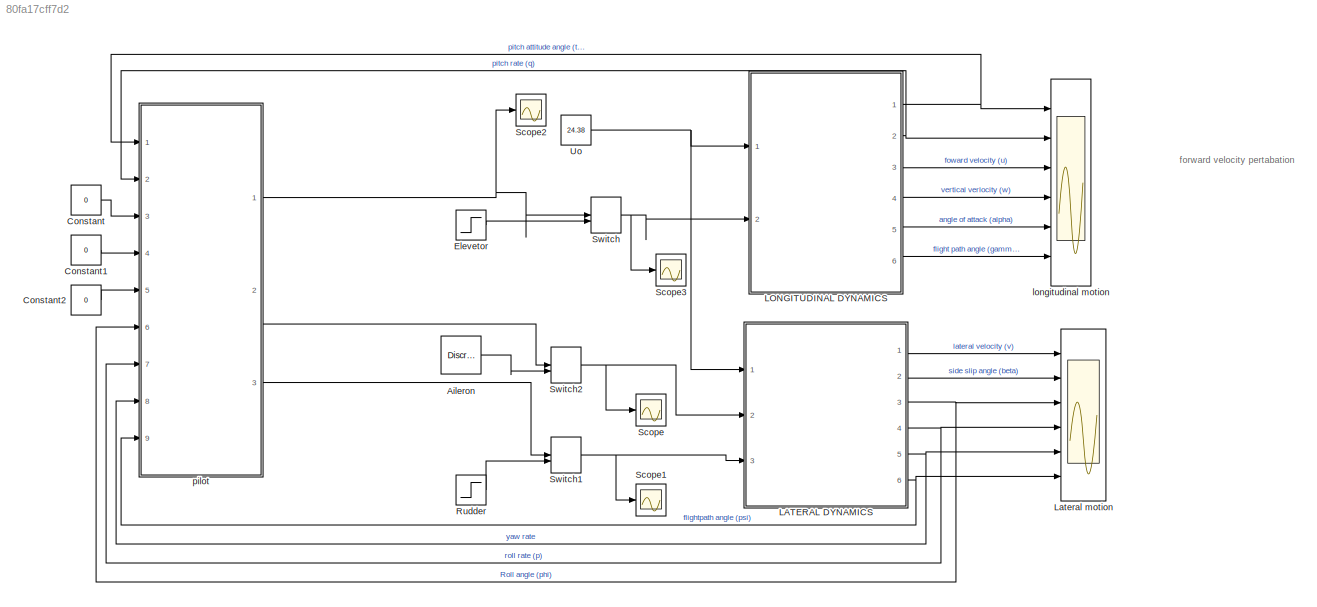
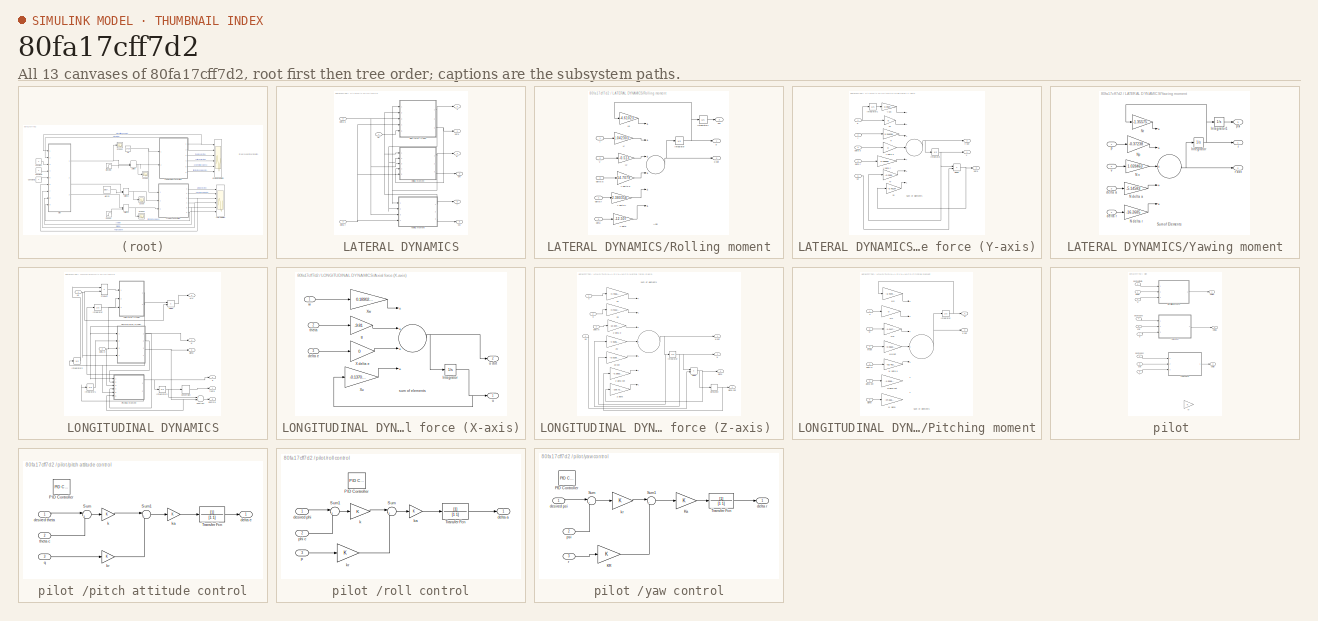
[diagram: thumbnail index - all 13 canvases of the model, root first then tree order]
MODEL slx_80fa17cff7d2
KIND model
CONFIG AbsTol = auto
CONFIG EnableMultiTasking = on
CONFIG FixedStep = auto
CONFIG MaxStep = auto
CONFIG MinStep = auto
CONFIG RelTol = 1e-3
CONFIG SampleTimeConstraint = Unconstrained
CONFIG Solver = ode45
CONFIG SolverName = ode45
CONFIG StartTime = 0.0
CONFIG StopTime = 400
BLOCK [ManualSwitch]  Switch
BLOCK [ManualSwitch]  Switch1
BLOCK [ManualSwitch]  Switch2
BLOCK [Reference] Aileron  REF=dspsrcs4/Discrete 
Impulse
  Ports = [0, 1]
  SourceBlock = dspsrcs4/Discrete \nImpulse
  SourceProductBaseCode = DS
  SourceProductName = DSP System Toolbox
  SourceType = Discrete Impulse
BLOCK [Constant] Constant
  SampleTime = 6
  Value = 0
BLOCK [Constant] Constant1
  Value = 0
BLOCK [Constant] Constant2
  Value = 0
BLOCK [Step] Elevetor
  After = -1
  SampleTime = 0
  Time = 0.5
BLOCK [SubSystem] LATERAL DYNAMICS
  Ports = [3, 6]
  RequestExecContextInheritance = off
BLOCK [SubSystem] LATERAL DYNAMICS/Rolling moment
  Ports = [5, 3]
  RequestExecContextInheritance = off
BLOCK [Sum] LATERAL DYNAMICS/Rolling moment/Add
  InputSameDT = off
  Inputs = ++++++
  OutDataTypeStr = Inherit: Inherit via internal rule
  Ports = [6, 1]
  SaturateOnIntegerOverflow = off
BLOCK [Integrator] LATERAL DYNAMICS/Rolling moment/Integrator
  Ports = [1, 1]
BLOCK [Integrator] LATERAL DYNAMICS/Rolling moment/Integrator1
  Ports = [1, 1]
BLOCK [Gain] LATERAL DYNAMICS/Rolling moment/L beta
  Gain = -12.507
  OutDataTypeStr = Inherit: Inherit via internal rule
  ParamDataTypeStr = Inherit: Inherit via internal rule
  SaturateOnIntegerOverflow = off
BLOCK [Gain] LATERAL DYNAMICS/Rolling moment/L delta a 
  Gain = 54.7079
  OutDataTypeStr = Inherit: Inherit via internal rule
  ParamDataTypeStr = Inherit: Inherit via internal rule
  SaturateOnIntegerOverflow = off
BLOCK [Gain] LATERAL DYNAMICS/Rolling moment/L delta r
  Gain = 2.380358
  OutDataTypeStr = Inherit: Inherit via internal rule
  ParamDataTypeStr = Inherit: Inherit via internal rule
  SaturateOnIntegerOverflow = off
BLOCK [Gain] LATERAL DYNAMICS/Rolling moment/Lp
  Gain = -4.61023
  OutDataTypeStr = Inherit: Inherit via internal rule
  ParamDataTypeStr = Inherit: Inherit via internal rule
  SaturateOnIntegerOverflow = off
BLOCK [Gain] LATERAL DYNAMICS/Rolling moment/Lr
  Gain = 1.042303
  OutDataTypeStr = Inherit: Inherit via internal rule
  ParamDataTypeStr = Inherit: Inherit via internal rule
  SaturateOnIntegerOverflow = off
BLOCK [Gain] LATERAL DYNAMICS/Rolling moment/Lv
  Gain = -0.513
  OutDataTypeStr = Inherit: Inherit via internal rule
  ParamDataTypeStr = Inherit: Inherit via internal rule
  SaturateOnIntegerOverflow = off
BLOCK [Inport] LATERAL DYNAMICS/Rolling moment/beta
  IconDisplay = Port number
  Port = 5
BLOCK [Inport] LATERAL DYNAMICS/Rolling moment/delta a
  IconDisplay = Port number
  Port = 3
BLOCK [Inport] LATERAL DYNAMICS/Rolling moment/delta r
  IconDisplay = Port number
  Port = 4
BLOCK [Outport] LATERAL DYNAMICS/Rolling moment/p
  IconDisplay = Port number
BLOCK [Outport] LATERAL DYNAMICS/Rolling moment/p dot
  IconDisplay = Port number
  Port = 2
BLOCK [Outport] LATERAL DYNAMICS/Rolling moment/phi
  IconDisplay = Port number
  Port = 3
BLOCK [Inport] LATERAL DYNAMICS/Rolling moment/r
  IconDisplay = Port number
BLOCK [Inport] LATERAL DYNAMICS/Rolling moment/v
  IconDisplay = Port number
  Port = 2
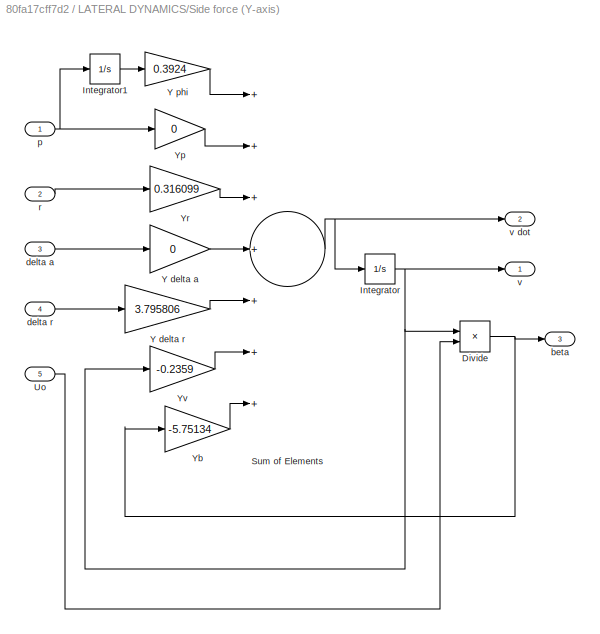
BLOCK [SubSystem] LATERAL DYNAMICS/Side force (Y-axis)
  Ports = [5, 3]
  RequestExecContextInheritance = off
BLOCK [Product] LATERAL DYNAMICS/Side force (Y-axis)/Divide
  InputSameDT = off
  Inputs = */
  OutDataTypeStr = Inherit: Inherit via internal rule
  Ports = [2, 1]
  RndMeth = Floor
  SaturateOnIntegerOverflow = off
BLOCK [Integrator] LATERAL DYNAMICS/Side force (Y-axis)/Integrator
  Ports = [1, 1]
BLOCK [Integrator] LATERAL DYNAMICS/Side force (Y-axis)/Integrator1
  Ports = [1, 1]
BLOCK [Sum] LATERAL DYNAMICS/Side force (Y-axis)/Sum of  Elements
  InputSameDT = off
  Inputs = +++++++
  OutDataTypeStr = Inherit: Inherit via internal rule
  Ports = [7, 1]
  SaturateOnIntegerOverflow = off
BLOCK [Inport] LATERAL DYNAMICS/Side force (Y-axis)/Uo
  IconDisplay = Port number
  Port = 5
BLOCK [Gain] LATERAL DYNAMICS/Side force (Y-axis)/Y delta a
  Gain = 0
  OutDataTypeStr = Inherit: Inherit via internal rule
  ParamDataTypeStr = Inherit: Inherit via internal rule
  SaturateOnIntegerOverflow = off
BLOCK [Gain] LATERAL DYNAMICS/Side force (Y-axis)/Y delta r
  Gain = 3.795806
  OutDataTypeStr = Inherit: Inherit via internal rule
  ParamDataTypeStr = Inherit: Inherit via internal rule
  SaturateOnIntegerOverflow = off
BLOCK [Gain] LATERAL DYNAMICS/Side force (Y-axis)/Y phi
  Gain = 0.3924
  OutDataTypeStr = Inherit: Inherit via internal rule
  ParamDataTypeStr = Inherit: Inherit via internal rule
  SaturateOnIntegerOverflow = off
BLOCK [Gain] LATERAL DYNAMICS/Side force (Y-axis)/Yb
  Gain = -5.75134
  OutDataTypeStr = Inherit: Inherit via internal rule
  ParamDataTypeStr = Inherit: Inherit via internal rule
  SaturateOnIntegerOverflow = off
BLOCK [Gain] LATERAL DYNAMICS/Side force (Y-axis)/Yp
  Gain = 0
  OutDataTypeStr = Inherit: Inherit via internal rule
  ParamDataTypeStr = Inherit: Inherit via internal rule
  SaturateOnIntegerOverflow = off
BLOCK [Gain] LATERAL DYNAMICS/Side force (Y-axis)/Yr
  Gain = 0.316099
  OutDataTypeStr = Inherit: Inherit via internal rule
  ParamDataTypeStr = Inherit: Inherit via internal rule
  SaturateOnIntegerOverflow = off
BLOCK [Gain] LATERAL DYNAMICS/Side force (Y-axis)/Yv
  Gain = -0.2359
  OutDataTypeStr = Inherit: Inherit via internal rule
  ParamDataTypeStr = Inherit: Inherit via internal rule
  SaturateOnIntegerOverflow = off
BLOCK [Outport] LATERAL DYNAMICS/Side force (Y-axis)/beta
  IconDisplay = Port number
  Port = 3
BLOCK [Inport] LATERAL DYNAMICS/Side force (Y-axis)/delta a
  IconDisplay = Port number
  Port = 3
BLOCK [Inport] LATERAL DYNAMICS/Side force (Y-axis)/delta r
  IconDisplay = Port number
  Port = 4
BLOCK [Inport] LATERAL DYNAMICS/Side force (Y-axis)/p
  IconDisplay = Port number
BLOCK [Inport] LATERAL DYNAMICS/Side force (Y-axis)/r
  IconDisplay = Port number
  Port = 2
BLOCK [Outport] LATERAL DYNAMICS/Side force (Y-axis)/v
  IconDisplay = Port number
BLOCK [Outport] LATERAL DYNAMICS/Side force (Y-axis)/v dot
  IconDisplay = Port number
  Port = 2
BLOCK [Inport] LATERAL DYNAMICS/Uo
  IconDisplay = Port number
BLOCK [SubSystem] LATERAL DYNAMICS/Yawing moment
  Ports = [4, 3]
  RequestExecContextInheritance = off
BLOCK [Integrator] LATERAL DYNAMICS/Yawing moment/Integrator
  Ports = [1, 1]
BLOCK [Integrator] LATERAL DYNAMICS/Yawing moment/Integrator1
  Ports = [1, 1]
BLOCK [Gain] LATERAL DYNAMICS/Yawing moment/N delta a
  Gain = -5.14583
  OutDataTypeStr = Inherit: Inherit via internal rule
  ParamDataTypeStr = Inherit: Inherit via internal rule
  SaturateOnIntegerOverflow = off
BLOCK [Gain] LATERAL DYNAMICS/Yawing moment/N delta r
  Gain = -16.2685
  OutDataTypeStr = Inherit: Inherit via internal rule
  ParamDataTypeStr = Inherit: Inherit via internal rule
  SaturateOnIntegerOverflow = off
BLOCK [Gain] LATERAL DYNAMICS/Yawing moment/N v
  Gain = 1.028463
  OutDataTypeStr = Inherit: Inherit via internal rule
  ParamDataTypeStr = Inherit: Inherit via internal rule
  SaturateOnIntegerOverflow = off
BLOCK [Gain] LATERAL DYNAMICS/Yawing moment/Np
  Gain = -0.37238
  OutDataTypeStr = Inherit: Inherit via internal rule
  ParamDataTypeStr = Inherit: Inherit via internal rule
  SaturateOnIntegerOverflow = off
BLOCK [Gain] LATERAL DYNAMICS/Yawing moment/Nr
  Gain = -1.35575
  OutDataTypeStr = Inherit: Inherit via internal rule
  ParamDataTypeStr = Inherit: Inherit via internal rule
  SaturateOnIntegerOverflow = off
BLOCK [Sum] LATERAL DYNAMICS/Yawing moment/Sum of Elements
  InputSameDT = off
  Inputs = +++++
  OutDataTypeStr = Inherit: Inherit via internal rule
  Ports = [5, 1]
  SaturateOnIntegerOverflow = off
BLOCK [Inport] LATERAL DYNAMICS/Yawing moment/delta a
  IconDisplay = Port number
  Port = 3
BLOCK [Inport] LATERAL DYNAMICS/Yawing moment/delta r
  IconDisplay = Port number
  Port = 4
BLOCK [Inport] LATERAL DYNAMICS/Yawing moment/p
  IconDisplay = Port number
BLOCK [Outport] LATERAL DYNAMICS/Yawing moment/psi
  IconDisplay = Port number
  Port = 3
BLOCK [Outport] LATERAL DYNAMICS/Yawing moment/r
  IconDisplay = Port number
BLOCK [Outport] LATERAL DYNAMICS/Yawing moment/r dot
  IconDisplay = Port number
  Port = 2
BLOCK [Inport] LATERAL DYNAMICS/Yawing moment/v
  IconDisplay = Port number
  Port = 2
BLOCK [Outport] LATERAL DYNAMICS/beta
  IconDisplay = Port number
  Port = 2
BLOCK [Inport] LATERAL DYNAMICS/delta a 
  IconDisplay = Port number
  Port = 2
BLOCK [Inport] LATERAL DYNAMICS/delta r
  IconDisplay = Port number
  Port = 3
BLOCK [Outport] LATERAL DYNAMICS/p
  IconDisplay = Port number
  Port = 4
BLOCK [Outport] LATERAL DYNAMICS/phi
  IconDisplay = Port number
  Port = 3
BLOCK [Outport] LATERAL DYNAMICS/psi
  IconDisplay = Port number
  Port = 6
BLOCK [Outport] LATERAL DYNAMICS/r
  IconDisplay = Port number
  Port = 5
BLOCK [Outport] LATERAL DYNAMICS/v
  IconDisplay = Port number
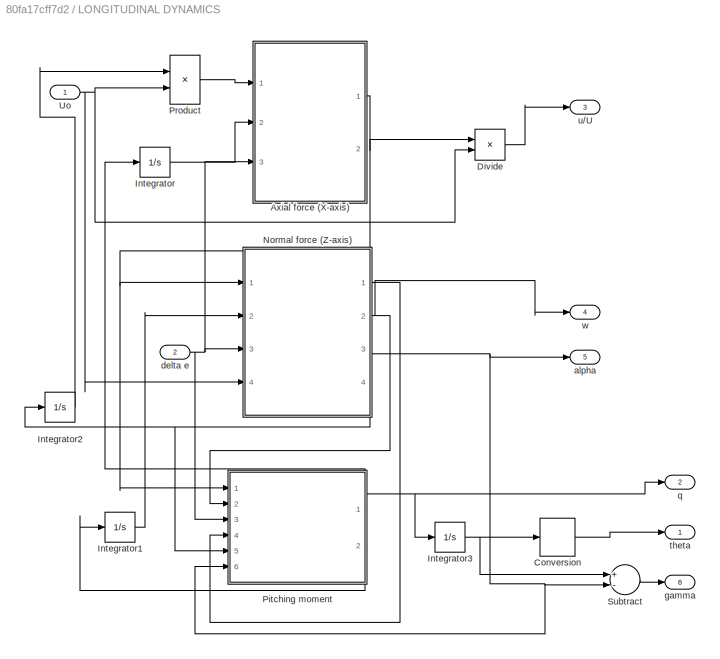
BLOCK [SubSystem] LONGITUDINAL DYNAMICS
  Ports = [2, 6]
  RequestExecContextInheritance = off
BLOCK [DataTypeConversion] LONGITUDINAL DYNAMICS/ Conversion
  OutDataTypeStr = double
  RndMeth = Floor
  SaturateOnIntegerOverflow = off
BLOCK [Inport] LONGITUDINAL DYNAMICS/ Uo
  IconDisplay = Port number
BLOCK [SubSystem] LONGITUDINAL DYNAMICS/Axial force (X-axis)
  Ports = [3, 2]
  RequestExecContextInheritance = off
BLOCK [Integrator] LONGITUDINAL DYNAMICS/Axial force (X-axis)/Integrator
  Ports = [1, 1]
BLOCK [Gain] LONGITUDINAL DYNAMICS/Axial force (X-axis)/X delta e
  Gain = 0
  OutDataTypeStr = Inherit: Inherit via internal rule
  ParamDataTypeStr = Inherit: Inherit via internal rule
  SaturateOnIntegerOverflow = off
BLOCK [Gain] LONGITUDINAL DYNAMICS/Axial force (X-axis)/Xu
  Gain = -0.1370985
  OutDataTypeStr = Inherit: Inherit via internal rule
  ParamDataTypeStr = Inherit: Inherit via internal rule
  SaturateOnIntegerOverflow = off
BLOCK [Gain] LONGITUDINAL DYNAMICS/Axial force (X-axis)/Xw
  Gain = 0.18902253
  OutDataTypeStr = Inherit: Inherit via internal rule
  ParamDataTypeStr = Inherit: Inherit via internal rule
  SaturateOnIntegerOverflow = off
BLOCK [Inport] LONGITUDINAL DYNAMICS/Axial force (X-axis)/delta e
  IconDisplay = Port number
  Port = 3
BLOCK [Gain] LONGITUDINAL DYNAMICS/Axial force (X-axis)/g
  Gain = -9.81
  OutDataTypeStr = Inherit: Inherit via internal rule
  ParamDataTypeStr = Inherit: Inherit via internal rule
  SaturateOnIntegerOverflow = off
BLOCK [Sum] LONGITUDINAL DYNAMICS/Axial force (X-axis)/sum of elements
  InputSameDT = off
  Inputs = ++++
  OutDataTypeStr = Inherit: Inherit via internal rule
  Ports = [4, 1]
  SaturateOnIntegerOverflow = off
BLOCK [Inport] LONGITUDINAL DYNAMICS/Axial force (X-axis)/theta
  IconDisplay = Port number
  Port = 2
BLOCK [Outport] LONGITUDINAL DYNAMICS/Axial force (X-axis)/u
  IconDisplay = Port number
BLOCK [Outport] LONGITUDINAL DYNAMICS/Axial force (X-axis)/u dot
  IconDisplay = Port number
  Port = 2
BLOCK [Inport] LONGITUDINAL DYNAMICS/Axial force (X-axis)/w
  IconDisplay = Port number
BLOCK [Product] LONGITUDINAL DYNAMICS/Divide
  InputSameDT = off
  Inputs = */
  OutDataTypeStr = Inherit: Inherit via internal rule
  Ports = [2, 1]
  RndMeth = Floor
  SaturateOnIntegerOverflow = off
BLOCK [Integrator] LONGITUDINAL DYNAMICS/Integrator
  Ports = [1, 1]
BLOCK [Integrator] LONGITUDINAL DYNAMICS/Integrator1
  Ports = [1, 1]
BLOCK [Integrator] LONGITUDINAL DYNAMICS/Integrator2
  Ports = [1, 1]
BLOCK [Integrator] LONGITUDINAL DYNAMICS/Integrator3
  Ports = [1, 1]
BLOCK [SubSystem] LONGITUDINAL DYNAMICS/Normal force (Z-axis) 
  Ports = [4, 4]
  RequestExecContextInheritance = off
BLOCK [Derivative] LONGITUDINAL DYNAMICS/Normal force (Z-axis) /Derivative
BLOCK [Product] LONGITUDINAL DYNAMICS/Normal force (Z-axis) /Divide
  InputSameDT = off
  Inputs = */
  OutDataTypeStr = Inherit: Inherit via internal rule
  Ports = [2, 1]
  RndMeth = Floor
  SaturateOnIntegerOverflow = off
BLOCK [Integrator] LONGITUDINAL DYNAMICS/Normal force (Z-axis) /Integrator
  Ports = [1, 1]
BLOCK [Inport] LONGITUDINAL DYNAMICS/Normal force (Z-axis) /Uo
  IconDisplay = Port number
  Port = 4
BLOCK [Gain] LONGITUDINAL DYNAMICS/Normal force (Z-axis) /Z alpha
  Gain = -108.72409
  OutDataTypeStr = Inherit: Inherit via internal rule
  ParamDataTypeStr = Inherit: Inherit via internal rule
  SaturateOnIntegerOverflow = off
BLOCK [Gain] LONGITUDINAL DYNAMICS/Normal force (Z-axis) /Z alpha dot
  Gain = -0.385364
  OutDataTypeStr = Inherit: Inherit via internal rule
  ParamDataTypeStr = Inherit: Inherit via internal rule
  SaturateOnIntegerOverflow = off
BLOCK [Gain] LONGITUDINAL DYNAMICS/Normal force (Z-axis) /Z delta e
  Gain = -10.304836
  OutDataTypeStr = Inherit: Inherit via internal rule
  ParamDataTypeStr = Inherit: Inherit via internal rule
  SaturateOnIntegerOverflow = off
BLOCK [Gain] LONGITUDINAL DYNAMICS/Normal force (Z-axis) /Zq
  Gain = -0.9152394
  OutDataTypeStr = Inherit: Inherit via internal rule
  ParamDataTypeStr = Inherit: Inherit via internal rule
  SaturateOnIntegerOverflow = off
BLOCK [Gain] LONGITUDINAL DYNAMICS/Normal force (Z-axis) /Zu
  Gain = -0.7655452
  OutDataTypeStr = Inherit: Inherit via internal rule
  ParamDataTypeStr = Inherit: Inherit via internal rule
  SaturateOnIntegerOverflow = off
BLOCK [Gain] LONGITUDINAL DYNAMICS/Normal force (Z-axis) /Zw
  Gain = -4.4595606
  OutDataTypeStr = Inherit: Inherit via internal rule
  ParamDataTypeStr = Inherit: Inherit via internal rule
  SaturateOnIntegerOverflow = off
BLOCK [Gain] LONGITUDINAL DYNAMICS/Normal force (Z-axis) /Zw dot
  Gain = -0.0158066
  OutDataTypeStr = Inherit: Inherit via internal rule
  ParamDataTypeStr = Inherit: Inherit via internal rule
  SaturateOnIntegerOverflow = off
BLOCK [Outport] LONGITUDINAL DYNAMICS/Normal force (Z-axis) /alpha
  IconDisplay = Port number
  Port = 3
BLOCK [Outport] LONGITUDINAL DYNAMICS/Normal force (Z-axis) /alpha dot
  IconDisplay = Port number
  Port = 4
BLOCK [Inport] LONGITUDINAL DYNAMICS/Normal force (Z-axis) /delta e
  IconDisplay = Port number
  Port = 3
BLOCK [Inport] LONGITUDINAL DYNAMICS/Normal force (Z-axis) /q
  IconDisplay = Port number
  Port = 2
BLOCK [Sum] LONGITUDINAL DYNAMICS/Normal force (Z-axis) /sum of elements
  InputSameDT = off
  Inputs = +++++++
  OutDataTypeStr = Inherit: Inherit via internal rule
  Ports = [7, 1]
  SaturateOnIntegerOverflow = off
BLOCK [Inport] LONGITUDINAL DYNAMICS/Normal force (Z-axis) /u
  IconDisplay = Port number
BLOCK [Outport] LONGITUDINAL DYNAMICS/Normal force (Z-axis) /w
  IconDisplay = Port number
  Port = 2
BLOCK [Outport] LONGITUDINAL DYNAMICS/Normal force (Z-axis) /w dot
  IconDisplay = Port number
BLOCK [SubSystem] LONGITUDINAL DYNAMICS/Pitching moment
  Ports = [6, 2]
  RequestExecContextInheritance = off
BLOCK [Integrator] LONGITUDINAL DYNAMICS/Pitching moment/Integrator
  Ports = [1, 1]
BLOCK [Gain] LONGITUDINAL DYNAMICS/Pitching moment/M alpha
  Gain = -24.666325
  OutDataTypeStr = Inherit: Inherit via internal rule
  ParamDataTypeStr = Inherit: Inherit via internal rule
  SaturateOnIntegerOverflow = off
BLOCK [Gain] LONGITUDINAL DYNAMICS/Pitching moment/M delta e
  Gain = -53.462998
  OutDataTypeStr = Inherit: Inherit via internal rule
  ParamDataTypeStr = Inherit: Inherit via internal rule
  SaturateOnIntegerOverflow = off
BLOCK [Gain] LONGITUDINAL DYNAMICS/Pitching moment/Malpha dot
  Gain = -1.5936646
  OutDataTypeStr = Inherit: Inherit via internal rule
  ParamDataTypeStr = Inherit: Inherit via internal rule
  SaturateOnIntegerOverflow = off
BLOCK [Gain] LONGITUDINAL DYNAMICS/Pitching moment/Mq
  Gain = -3.7849534
  OutDataTypeStr = Inherit: Inherit via internal rule
  ParamDataTypeStr = Inherit: Inherit via internal rule
  SaturateOnIntegerOverflow = off
BLOCK [Gain] LONGITUDINAL DYNAMICS/Pitching moment/Mu
  Gain = 0
  OutDataTypeStr = Inherit: Inherit via internal rule
  ParamDataTypeStr = Inherit: Inherit via internal rule
  SaturateOnIntegerOverflow = off
BLOCK [Gain] LONGITUDINAL DYNAMICS/Pitching moment/Mw
  Gain = -1.0117442
  OutDataTypeStr = Inherit: Inherit via internal rule
  ParamDataTypeStr = Inherit: Inherit via internal rule
  SaturateOnIntegerOverflow = off
BLOCK [Gain] LONGITUDINAL DYNAMICS/Pitching moment/Mw dot
  Gain = -0.0653677
  OutDataTypeStr = Inherit: Inherit via internal rule
  ParamDataTypeStr = Inherit: Inherit via internal rule
  SaturateOnIntegerOverflow = off
BLOCK [Sum] LONGITUDINAL DYNAMICS/Pitching moment/Sum of elements 
  InputSameDT = off
  Inputs = +++++++
  OutDataTypeStr = Inherit: Inherit via internal rule
  Ports = [7, 1]
  SaturateOnIntegerOverflow = off
BLOCK [Inport] LONGITUDINAL DYNAMICS/Pitching moment/alpha 
  IconDisplay = Port number
  Port = 6
BLOCK [Inport] LONGITUDINAL DYNAMICS/Pitching moment/alpha dot
  IconDisplay = Port number
  Port = 5
BLOCK [Inport] LONGITUDINAL DYNAMICS/Pitching moment/delta e
  IconDisplay = Port number
  Port = 3
BLOCK [Outport] LONGITUDINAL DYNAMICS/Pitching moment/q
  IconDisplay = Port number
BLOCK [Outport] LONGITUDINAL DYNAMICS/Pitching moment/q dot
  IconDisplay = Port number
  Port = 2
BLOCK [Inport] LONGITUDINAL DYNAMICS/Pitching moment/u
  IconDisplay = Port number
BLOCK [Inport] LONGITUDINAL DYNAMICS/Pitching moment/w
  IconDisplay = Port number
  Port = 2
BLOCK [Inport] LONGITUDINAL DYNAMICS/Pitching moment/w dot
  IconDisplay = Port number
  Port = 4
BLOCK [Product] LONGITUDINAL DYNAMICS/Product
  InputSameDT = off
  OutDataTypeStr = Inherit: Inherit via internal rule
  Ports = [2, 1]
  SaturateOnIntegerOverflow = off
BLOCK [Sum] LONGITUDINAL DYNAMICS/Subtract
  InputSameDT = off
  Inputs = +-
  OutDataTypeStr = Inherit: Inherit via internal rule
  Ports = [2, 1]
  SaturateOnIntegerOverflow = off
BLOCK [Outport] LONGITUDINAL DYNAMICS/alpha
  IconDisplay = Port number
  Port = 5
BLOCK [Inport] LONGITUDINAL DYNAMICS/delta e
  IconDisplay = Port number
  Port = 2
BLOCK [Outport] LONGITUDINAL DYNAMICS/gamma
  IconDisplay = Port number
  Port = 6
BLOCK [Outport] LONGITUDINAL DYNAMICS/q
  IconDisplay = Port number
  Port = 2
BLOCK [Outport] LONGITUDINAL DYNAMICS/theta
  IconDisplay = Port number
BLOCK [Outport] LONGITUDINAL DYNAMICS/u//U
  IconDisplay = Port number
  Port = 3
BLOCK [Outport] LONGITUDINAL DYNAMICS/w
  IconDisplay = Port number
  Port = 4
BLOCK [Scope] Lateral motion
  Floating = off
  NumInputPorts = 6
  Ports = [6]
  ScopeSpecificationString = C++SS(StrPVP('Location','[5, 48, 1285, 759]'),StrPVP('Open','off'),MxPVP('AxesTitles',53,'struct(''axes1'',''%<SignalLabel>'',''axes2'',''%<SignalLabel>'',''axes3'',''%<SignalLabel>'',''axes4'',''%<SignalLabel>'',''axes5'',''%<SignalLabel>'',''axes6'',''%<SignalLabel>'')'),StrPVP('TimeRange','70'),StrPVP('YMin','-15~-0.6~-15~-2~-30~-275'),StrPVP('YMax','5~0.2~30~10~0~0'),StrPVP('SaveName','ScopeDa...<+176ch>
BLOCK [Step] Rudder
  SampleTime = 0
  Time = 0.5
BLOCK [Scope] Scope
  Floating = off
  NumInputPorts = 1
  Ports = [1]
  ScopeSpecificationString = Simulink.scopes.TimeScopeBlockCfg('CurrentConfiguration', extmgr.ConfigurationSet(extmgr.Configuration('Core','General UI',true),extmgr.Configuration('Core','Source UI',true),extmgr.Configuration('Sources','WiredSimulink',true,'DataLoggingVariableName','ScopeData2','DataLoggingSaveFormat','StructureWithTime','DataLoggingLimitDataPoints',true,'DataLoggingDecimation','1','DataLoggingDecimateData',tr...<+929ch>
BLOCK [Scope] Scope1
  Floating = off
  NumInputPorts = 1
  Ports = [1]
  ScopeSpecificationString = C++SS(StrPVP('Location','[188, 390, 512, 629]'),StrPVP('Open','off'),MxPVP('AxesTitles',53,'struct(''axes1'',''%<SignalLabel>'')'),StrPVP('YMin','-1'),StrPVP('YMax','1'),StrPVP('SaveName','ScopeData3'),StrPVP('DataFormat','StructureWithTime'),StrPVP('BlockParamSampleTime','0'),StrPVP('LimitDataPoints','on'),StrPVP('Decimation','1'),StrPVP('BlockParamSampleInput','off'))
BLOCK [Scope] Scope2
  Floating = off
  NumInputPorts = 1
  Ports = [1]
  ScopeSpecificationString = C++SS(StrPVP('Location','[257, 436, 581, 675]'),StrPVP('Open','off'),MxPVP('AxesTitles',53,'struct(''axes1'',''%<SignalLabel>'')'),StrPVP('SaveName','ScopeData4'),StrPVP('DataFormat','StructureWithTime'),StrPVP('BlockParamSampleTime','0'),StrPVP('LimitDataPoints','on'),StrPVP('Decimation','1'),StrPVP('BlockParamSampleInput','off'))
BLOCK [Scope] Scope3
  Floating = off
  NumInputPorts = 1
  Ports = [1]
  ScopeSpecificationString = C++SS(StrPVP('Location','[188, 390, 512, 629]'),StrPVP('Open','off'),MxPVP('AxesTitles',53,'struct(''axes1'',''%<SignalLabel>'')'),StrPVP('SaveName','ScopeData5'),StrPVP('DataFormat','StructureWithTime'),StrPVP('BlockParamSampleTime','0'),StrPVP('LimitDataPoints','on'),StrPVP('Decimation','1'),StrPVP('BlockParamSampleInput','off'))
BLOCK [Constant] Uo
  Value = 24.38
BLOCK [Scope] longitudinal motion
  Floating = off
  NumInputPorts = 6
  Ports = [6]
  ScopeSpecificationString = Simulink.scopes.TimeScopeBlockCfg('CurrentConfiguration', extmgr.ConfigurationSet(extmgr.Configuration('Core','General UI',true),extmgr.Configuration('Core','Source UI',true),extmgr.Configuration('Sources','WiredSimulink',true,'DataLoggingSaveFormat','StructureWithTime','DataLoggingLimitDataPoints',true,'DataLoggingDecimation','1','DataLoggingDecimateData',true),extmgr.Configuration('Visuals','Tim...<+5038ch>
BLOCK [SubSystem] pilot 
  Ports = [9, 3]
  RequestExecContextInheritance = off
BLOCK [Outport] pilot /delta a
  IconDisplay = Port number
  Port = 2
BLOCK [Outport] pilot /delta e
  IconDisplay = Port number
BLOCK [Outport] pilot /delta r
  IconDisplay = Port number
  Port = 3
BLOCK [Inport] pilot /desired phi
  IconDisplay = Port number
  Port = 4
BLOCK [Inport] pilot /desired psi
  IconDisplay = Port number
  Port = 5
BLOCK [Inport] pilot /desired theta
  IconDisplay = Port number
  Port = 3
BLOCK [Gain] pilot /kr
  OutDataTypeStr = Inherit: Inherit via internal rule
  ParamDataTypeStr = Inherit: Inherit via internal rule
  SaturateOnIntegerOverflow = off
BLOCK [Inport] pilot /p
  IconDisplay = Port number
  Port = 7
BLOCK [Inport] pilot /phi c
  IconDisplay = Port number
  Port = 6
BLOCK [SubSystem] pilot /pitch attitude control
  Ports = [3, 1]
  RequestExecContextInheritance = off
BLOCK [Reference] pilot /pitch attitude control/PID Controller  REF=simulink/Continuous/PID Controller
  Ports = [1, 1]
  SourceBlock = simulink/Continuous/PID Controller
  SourceProductBaseCode = SL
  SourceProductName = Simulink
  SourceType = PID 1dof
BLOCK [Sum] pilot /pitch attitude control/Sum
  IconShape = round
  InputSameDT = off
  Inputs = |+-
  OutDataTypeStr = Inherit: Inherit via internal rule
  Ports = [2, 1]
  SaturateOnIntegerOverflow = off
BLOCK [Sum] pilot /pitch attitude control/Sum1
  IconShape = round
  InputSameDT = off
  Inputs = |+-
  OutDataTypeStr = Inherit: Inherit via internal rule
  Ports = [2, 1]
  SaturateOnIntegerOverflow = off
BLOCK [TransferFcn] pilot /pitch attitude control/Transfer Fcn
  Denominator = [1 1]
BLOCK [Outport] pilot /pitch attitude control/delta e
  IconDisplay = Port number
BLOCK [Inport] pilot /pitch attitude control/desired theta
  IconDisplay = Port number
BLOCK [Gain] pilot /pitch attitude control/k
  OutDataTypeStr = Inherit: Inherit via internal rule
  ParamDataTypeStr = Inherit: Inherit via internal rule
  SaturateOnIntegerOverflow = off
BLOCK [Gain] pilot /pitch attitude control/ka
  OutDataTypeStr = Inherit: Inherit via internal rule
  ParamDataTypeStr = Inherit: Inherit via internal rule
  SaturateOnIntegerOverflow = off
BLOCK [Gain] pilot /pitch attitude control/kr
  OutDataTypeStr = Inherit: Inherit via internal rule
  ParamDataTypeStr = Inherit: Inherit via internal rule
  SaturateOnIntegerOverflow = off
BLOCK [Inport] pilot /pitch attitude control/q
  IconDisplay = Port number
  Port = 3
BLOCK [Inport] pilot /pitch attitude control/theta c
  IconDisplay = Port number
  Port = 2
BLOCK [Inport] pilot /psi c
  IconDisplay = Port number
  Port = 9
BLOCK [Inport] pilot /q
  IconDisplay = Port number
  Port = 2
BLOCK [Inport] pilot /r
  IconDisplay = Port number
  Port = 8
BLOCK [SubSystem] pilot /roll control
  Ports = [3, 1]
  RequestExecContextInheritance = off
BLOCK [Reference] pilot /roll control/PID Controller  REF=simulink/Continuous/PID Controller
  Ports = [1, 1]
  SourceBlock = simulink/Continuous/PID Controller
  SourceProductBaseCode = SL
  SourceProductName = Simulink
  SourceType = PID 1dof
BLOCK [Sum] pilot /roll control/Sum
  IconShape = round
  InputSameDT = off
  Inputs = |+-
  OutDataTypeStr = Inherit: Inherit via internal rule
  Ports = [2, 1]
  SaturateOnIntegerOverflow = off
BLOCK [Sum] pilot /roll control/Sum1
  IconShape = round
  InputSameDT = off
  Inputs = |+-
  OutDataTypeStr = Inherit: Inherit via internal rule
  Ports = [2, 1]
  SaturateOnIntegerOverflow = off
BLOCK [TransferFcn] pilot /roll control/Transfer Fcn
  Denominator = [1 1]
BLOCK [Outport] pilot /roll control/delta a
  IconDisplay = Port number
BLOCK [Inport] pilot /roll control/desired phi 
  IconDisplay = Port number
BLOCK [Gain] pilot /roll control/k
  OutDataTypeStr = Inherit: Inherit via internal rule
  ParamDataTypeStr = Inherit: Inherit via internal rule
  SaturateOnIntegerOverflow = off
BLOCK [Gain] pilot /roll control/ka
  OutDataTypeStr = Inherit: Inherit via internal rule
  ParamDataTypeStr = Inherit: Inherit via internal rule
  SaturateOnIntegerOverflow = off
BLOCK [Gain] pilot /roll control/kr
  OutDataTypeStr = Inherit: Inherit via internal rule
  ParamDataTypeStr = Inherit: Inherit via internal rule
  SaturateOnIntegerOverflow = off
BLOCK [Inport] pilot /roll control/p
  IconDisplay = Port number
  Port = 3
BLOCK [Inport] pilot /roll control/phi c
  IconDisplay = Port number
  Port = 2
BLOCK [Inport] pilot /theta c
  IconDisplay = Port number
BLOCK [SubSystem] pilot /yaw control
  Ports = [3, 1]
  RequestExecContextInheritance = off
BLOCK [Gain] pilot /yaw control/KR
  OutDataTypeStr = Inherit: Inherit via internal rule
  ParamDataTypeStr = Inherit: Inherit via internal rule
  SaturateOnIntegerOverflow = off
BLOCK [Gain] pilot /yaw control/Ka
  OutDataTypeStr = Inherit: Inherit via internal rule
  ParamDataTypeStr = Inherit: Inherit via internal rule
  SaturateOnIntegerOverflow = off
BLOCK [Reference] pilot /yaw control/PID Controller  REF=simulink/Continuous/PID Controller
  Ports = [1, 1]
  SourceBlock = simulink/Continuous/PID Controller
  SourceProductBaseCode = SL
  SourceProductName = Simulink
  SourceType = PID 1dof
BLOCK [Sum] pilot /yaw control/Sum
  IconShape = round
  InputSameDT = off
  Inputs = |+-
  OutDataTypeStr = Inherit: Inherit via internal rule
  Ports = [2, 1]
  SaturateOnIntegerOverflow = off
BLOCK [Sum] pilot /yaw control/Sum1
  IconShape = round
  InputSameDT = off
  Inputs = |+-
  OutDataTypeStr = Inherit: Inherit via internal rule
  Ports = [2, 1]
  SaturateOnIntegerOverflow = off
BLOCK [TransferFcn] pilot /yaw control/Transfer Fcn
  Denominator = [1 1]
BLOCK [Outport] pilot /yaw control/delta r
  IconDisplay = Port number
BLOCK [Inport] pilot /yaw control/desired psi 
  IconDisplay = Port number
BLOCK [Gain] pilot /yaw control/kr
  OutDataTypeStr = Inherit: Inherit via internal rule
  ParamDataTypeStr = Inherit: Inherit via internal rule
  SaturateOnIntegerOverflow = off
BLOCK [Inport] pilot /yaw control/psi
  IconDisplay = Port number
  Port = 2
BLOCK [Inport] pilot /yaw control/r
  IconDisplay = Port number
  Port = 3
ANNOTATION (root): forward velocity pertabation
NET  Switch1:1 -> LATERAL DYNAMICS:3, Scope1:1
NET  Switch2:1 -> LATERAL DYNAMICS:2, Scope:1
NET  Switch:1 -> LONGITUDINAL DYNAMICS:2, Scope3:1
LINE Aileron:1 ->  Switch2:2
LINE Constant1:1 -> pilot :4
LINE Constant2:1 -> pilot :5
LINE Constant:1 -> pilot :3
LINE Elevetor:1 ->  Switch:2
NET LATERAL DYNAMICS/Rolling moment/Add:1 -> LATERAL DYNAMICS/Rolling moment/Integrator:1, LATERAL DYNAMICS/Rolling moment/p dot:1
LINE LATERAL DYNAMICS/Rolling moment/Integrator1:1 -> LATERAL DYNAMICS/Rolling moment/phi:1
NET LATERAL DYNAMICS/Rolling moment/Integrator:1 -> LATERAL DYNAMICS/Rolling moment/Integrator1:1, LATERAL DYNAMICS/Rolling moment/Lp:1, LATERAL DYNAMICS/Rolling moment/p:1
LINE LATERAL DYNAMICS/Rolling moment/L beta:1 -> LATERAL DYNAMICS/Rolling moment/Add:6
LINE LATERAL DYNAMICS/Rolling moment/L delta a :1 -> LATERAL DYNAMICS/Rolling moment/Add:4
LINE LATERAL DYNAMICS/Rolling moment/L delta r:1 -> LATERAL DYNAMICS/Rolling moment/Add:5
LINE LATERAL DYNAMICS/Rolling moment/Lp:1 -> LATERAL DYNAMICS/Rolling moment/Add:1
LINE LATERAL DYNAMICS/Rolling moment/Lr:1 -> LATERAL DYNAMICS/Rolling moment/Add:2
LINE LATERAL DYNAMICS/Rolling moment/Lv:1 -> LATERAL DYNAMICS/Rolling moment/Add:3
LINE LATERAL DYNAMICS/Rolling moment/beta:1 -> LATERAL DYNAMICS/Rolling moment/L beta:1
LINE LATERAL DYNAMICS/Rolling moment/delta a:1 -> LATERAL DYNAMICS/Rolling moment/L delta a :1
LINE LATERAL DYNAMICS/Rolling moment/delta r:1 -> LATERAL DYNAMICS/Rolling moment/L delta r:1
LINE LATERAL DYNAMICS/Rolling moment/r:1 -> LATERAL DYNAMICS/Rolling moment/Lr:1
LINE LATERAL DYNAMICS/Rolling moment/v:1 -> LATERAL DYNAMICS/Rolling moment/Lv:1
NET LATERAL DYNAMICS/Rolling moment:1 -> LATERAL DYNAMICS/Side force (Y-axis):1, LATERAL DYNAMICS/Yawing moment:1, LATERAL DYNAMICS/p:1
LINE LATERAL DYNAMICS/Rolling moment:3 -> LATERAL DYNAMICS/phi:1
NET LATERAL DYNAMICS/Side force (Y-axis)/Divide:1 -> LATERAL DYNAMICS/Side force (Y-axis)/Yb:1, LATERAL DYNAMICS/Side force (Y-axis)/beta:1
LINE LATERAL DYNAMICS/Side force (Y-axis)/Integrator1:1 -> LATERAL DYNAMICS/Side force (Y-axis)/Y phi:1
NET LATERAL DYNAMICS/Side force (Y-axis)/Integrator:1 -> LATERAL DYNAMICS/Side force (Y-axis)/Divide:1, LATERAL DYNAMICS/Side force (Y-axis)/Yv:1, LATERAL DYNAMICS/Side force (Y-axis)/v:1
NET LATERAL DYNAMICS/Side force (Y-axis)/Sum of  Elements:1 -> LATERAL DYNAMICS/Side force (Y-axis)/Integrator:1, LATERAL DYNAMICS/Side force (Y-axis)/v dot:1
LINE LATERAL DYNAMICS/Side force (Y-axis)/Uo:1 -> LATERAL DYNAMICS/Side force (Y-axis)/Divide:2
LINE LATERAL DYNAMICS/Side force (Y-axis)/Y delta a:1 -> LATERAL DYNAMICS/Side force (Y-axis)/Sum of  Elements:4
LINE LATERAL DYNAMICS/Side force (Y-axis)/Y delta r:1 -> LATERAL DYNAMICS/Side force (Y-axis)/Sum of  Elements:5
LINE LATERAL DYNAMICS/Side force (Y-axis)/Y phi:1 -> LATERAL DYNAMICS/Side force (Y-axis)/Sum of  Elements:1
LINE LATERAL DYNAMICS/Side force (Y-axis)/Yb:1 -> LATERAL DYNAMICS/Side force (Y-axis)/Sum of  Elements:7
LINE LATERAL DYNAMICS/Side force (Y-axis)/Yp:1 -> LATERAL DYNAMICS/Side force (Y-axis)/Sum of  Elements:2
LINE LATERAL DYNAMICS/Side force (Y-axis)/Yr:1 -> LATERAL DYNAMICS/Side force (Y-axis)/Sum of  Elements:3
LINE LATERAL DYNAMICS/Side force (Y-axis)/Yv:1 -> LATERAL DYNAMICS/Side force (Y-axis)/Sum of  Elements:6
LINE LATERAL DYNAMICS/Side force (Y-axis)/delta a:1 -> LATERAL DYNAMICS/Side force (Y-axis)/Y delta a:1
LINE LATERAL DYNAMICS/Side force (Y-axis)/delta r:1 -> LATERAL DYNAMICS/Side force (Y-axis)/Y delta r:1
NET LATERAL DYNAMICS/Side force (Y-axis)/p:1 -> LATERAL DYNAMICS/Side force (Y-axis)/Integrator1:1, LATERAL DYNAMICS/Side force (Y-axis)/Yp:1
LINE LATERAL DYNAMICS/Side force (Y-axis)/r:1 -> LATERAL DYNAMICS/Side force (Y-axis)/Yr:1
NET LATERAL DYNAMICS/Side force (Y-axis):1 -> LATERAL DYNAMICS/Rolling moment:2, LATERAL DYNAMICS/Yawing moment:2, LATERAL DYNAMICS/v:1
NET LATERAL DYNAMICS/Side force (Y-axis):3 -> LATERAL DYNAMICS/Rolling moment:5, LATERAL DYNAMICS/beta:1
LINE LATERAL DYNAMICS/Uo:1 -> LATERAL DYNAMICS/Side force (Y-axis):5
LINE LATERAL DYNAMICS/Yawing moment/Integrator1:1 -> LATERAL DYNAMICS/Yawing moment/psi:1
NET LATERAL DYNAMICS/Yawing moment/Integrator:1 -> LATERAL DYNAMICS/Yawing moment/Integrator1:1, LATERAL DYNAMICS/Yawing moment/Nr:1, LATERAL DYNAMICS/Yawing moment/r:1
LINE LATERAL DYNAMICS/Yawing moment/N delta a:1 -> LATERAL DYNAMICS/Yawing moment/Sum of Elements:4
LINE LATERAL DYNAMICS/Yawing moment/N delta r:1 -> LATERAL DYNAMICS/Yawing moment/Sum of Elements:5
LINE LATERAL DYNAMICS/Yawing moment/N v:1 -> LATERAL DYNAMICS/Yawing moment/Sum of Elements:3
LINE LATERAL DYNAMICS/Yawing moment/Np:1 -> LATERAL DYNAMICS/Yawing moment/Sum of Elements:2
LINE LATERAL DYNAMICS/Yawing moment/Nr:1 -> LATERAL DYNAMICS/Yawing moment/Sum of Elements:1
NET LATERAL DYNAMICS/Yawing moment/Sum of Elements:1 -> LATERAL DYNAMICS/Yawing moment/Integrator:1, LATERAL DYNAMICS/Yawing moment/r dot:1
LINE LATERAL DYNAMICS/Yawing moment/delta a:1 -> LATERAL DYNAMICS/Yawing moment/N delta a:1
LINE LATERAL DYNAMICS/Yawing moment/delta r:1 -> LATERAL DYNAMICS/Yawing moment/N delta r:1
LINE LATERAL DYNAMICS/Yawing moment/p:1 -> LATERAL DYNAMICS/Yawing moment/Np:1
LINE LATERAL DYNAMICS/Yawing moment/v:1 -> LATERAL DYNAMICS/Yawing moment/N v:1
NET LATERAL DYNAMICS/Yawing moment:1 -> LATERAL DYNAMICS/Rolling moment:1, LATERAL DYNAMICS/Side force (Y-axis):2, LATERAL DYNAMICS/r:1
LINE LATERAL DYNAMICS/Yawing moment:3 -> LATERAL DYNAMICS/psi:1
NET LATERAL DYNAMICS/delta a :1 -> LATERAL DYNAMICS/Rolling moment:3, LATERAL DYNAMICS/Side force (Y-axis):3, LATERAL DYNAMICS/Yawing moment:3
NET LATERAL DYNAMICS/delta r:1 -> LATERAL DYNAMICS/Rolling moment:4, LATERAL DYNAMICS/Side force (Y-axis):4, LATERAL DYNAMICS/Yawing moment:4
LINE LATERAL DYNAMICS:1 -> Lateral motion:1
LINE LATERAL DYNAMICS:2 -> Lateral motion:2
NET LATERAL DYNAMICS:3 -> Lateral motion:3, pilot :6
NET LATERAL DYNAMICS:4 -> Lateral motion:4, pilot :7
NET LATERAL DYNAMICS:5 -> Lateral motion:5, pilot :8
NET LATERAL DYNAMICS:6 -> Lateral motion:6, pilot :9
LINE LONGITUDINAL DYNAMICS/ Conversion:1 -> LONGITUDINAL DYNAMICS/theta:1
NET LONGITUDINAL DYNAMICS/ Uo:1 -> LONGITUDINAL DYNAMICS/Divide:2, LONGITUDINAL DYNAMICS/Normal force (Z-axis) :4, LONGITUDINAL DYNAMICS/Product:2
NET LONGITUDINAL DYNAMICS/Axial force (X-axis)/Integrator:1 -> LONGITUDINAL DYNAMICS/Axial force (X-axis)/Xu:1, LONGITUDINAL DYNAMICS/Axial force (X-axis)/u:1
LINE LONGITUDINAL DYNAMICS/Axial force (X-axis)/X delta e:1 -> LONGITUDINAL DYNAMICS/Axial force (X-axis)/sum of elements:3
LINE LONGITUDINAL DYNAMICS/Axial force (X-axis)/Xu:1 -> LONGITUDINAL DYNAMICS/Axial force (X-axis)/sum of elements:4
LINE LONGITUDINAL DYNAMICS/Axial force (X-axis)/Xw:1 -> LONGITUDINAL DYNAMICS/Axial force (X-axis)/sum of elements:1
LINE LONGITUDINAL DYNAMICS/Axial force (X-axis)/delta e:1 -> LONGITUDINAL DYNAMICS/Axial force (X-axis)/X delta e:1
LINE LONGITUDINAL DYNAMICS/Axial force (X-axis)/g:1 -> LONGITUDINAL DYNAMICS/Axial force (X-axis)/sum of elements:2
NET LONGITUDINAL DYNAMICS/Axial force (X-axis)/sum of elements:1 -> LONGITUDINAL DYNAMICS/Axial force (X-axis)/Integrator:1, LONGITUDINAL DYNAMICS/Axial force (X-axis)/u dot:1
LINE LONGITUDINAL DYNAMICS/Axial force (X-axis)/theta:1 -> LONGITUDINAL DYNAMICS/Axial force (X-axis)/g:1
LINE LONGITUDINAL DYNAMICS/Axial force (X-axis)/w:1 -> LONGITUDINAL DYNAMICS/Axial force (X-axis)/Xw:1
NET LONGITUDINAL DYNAMICS/Axial force (X-axis):1 -> LONGITUDINAL DYNAMICS/Divide:1, LONGITUDINAL DYNAMICS/Normal force (Z-axis) :1, LONGITUDINAL DYNAMICS/Pitching moment:1
LINE LONGITUDINAL DYNAMICS/Divide:1 -> LONGITUDINAL DYNAMICS/u//U:1
LINE LONGITUDINAL DYNAMICS/Integrator1:1 -> LONGITUDINAL DYNAMICS/Normal force (Z-axis) :2
LINE LONGITUDINAL DYNAMICS/Integrator2:1 -> LONGITUDINAL DYNAMICS/Product:1
NET LONGITUDINAL DYNAMICS/Integrator3:1 -> LONGITUDINAL DYNAMICS/ Conversion:1, LONGITUDINAL DYNAMICS/Subtract:1
LINE LONGITUDINAL DYNAMICS/Integrator:1 -> LONGITUDINAL DYNAMICS/Axial force (X-axis):2
NET LONGITUDINAL DYNAMICS/Normal force (Z-axis) /Derivative:1 -> LONGITUDINAL DYNAMICS/Normal force (Z-axis) /Z alpha dot:1, LONGITUDINAL DYNAMICS/Normal force (Z-axis) /alpha dot:1
NET LONGITUDINAL DYNAMICS/Normal force (Z-axis) /Divide:1 -> LONGITUDINAL DYNAMICS/Normal force (Z-axis) /Derivative:1, LONGITUDINAL DYNAMICS/Normal force (Z-axis) /Z alpha:1, LONGITUDINAL DYNAMICS/Normal force (Z-axis) /alpha:1
NET LONGITUDINAL DYNAMICS/Normal force (Z-axis) /Integrator:1 -> LONGITUDINAL DYNAMICS/Normal force (Z-axis) /Divide:1, LONGITUDINAL DYNAMICS/Normal force (Z-axis) /Zw:1, LONGITUDINAL DYNAMICS/Normal force (Z-axis) /w:1
LINE LONGITUDINAL DYNAMICS/Normal force (Z-axis) /Uo:1 -> LONGITUDINAL DYNAMICS/Normal force (Z-axis) /Divide:2
LINE LONGITUDINAL DYNAMICS/Normal force (Z-axis) /Z alpha dot:1 -> LONGITUDINAL DYNAMICS/Normal force (Z-axis) /sum of elements:6
LINE LONGITUDINAL DYNAMICS/Normal force (Z-axis) /Z alpha:1 -> LONGITUDINAL DYNAMICS/Normal force (Z-axis) /sum of elements:7
LINE LONGITUDINAL DYNAMICS/Normal force (Z-axis) /Z delta e:1 -> LONGITUDINAL DYNAMICS/Normal force (Z-axis) /sum of elements:3
LINE LONGITUDINAL DYNAMICS/Normal force (Z-axis) /Zq:1 -> LONGITUDINAL DYNAMICS/Normal force (Z-axis) /sum of elements:2
LINE LONGITUDINAL DYNAMICS/Normal force (Z-axis) /Zu:1 -> LONGITUDINAL DYNAMICS/Normal force (Z-axis) /sum of elements:1
LINE LONGITUDINAL DYNAMICS/Normal force (Z-axis) /Zw dot:1 -> LONGITUDINAL DYNAMICS/Normal force (Z-axis) /sum of elements:5
LINE LONGITUDINAL DYNAMICS/Normal force (Z-axis) /Zw:1 -> LONGITUDINAL DYNAMICS/Normal force (Z-axis) /sum of elements:4
LINE LONGITUDINAL DYNAMICS/Normal force (Z-axis) /delta e:1 -> LONGITUDINAL DYNAMICS/Normal force (Z-axis) /Z delta e:1
LINE LONGITUDINAL DYNAMICS/Normal force (Z-axis) /q:1 -> LONGITUDINAL DYNAMICS/Normal force (Z-axis) /Zq:1
NET LONGITUDINAL DYNAMICS/Normal force (Z-axis) /sum of elements:1 -> LONGITUDINAL DYNAMICS/Normal force (Z-axis) /Integrator:1, LONGITUDINAL DYNAMICS/Normal force (Z-axis) /Zw dot:1, LONGITUDINAL DYNAMICS/Normal force (Z-axis) /w dot:1
LINE LONGITUDINAL DYNAMICS/Normal force (Z-axis) /u:1 -> LONGITUDINAL DYNAMICS/Normal force (Z-axis) /Zu:1
LINE LONGITUDINAL DYNAMICS/Normal force (Z-axis) :1 -> LONGITUDINAL DYNAMICS/Pitching moment:4
NET LONGITUDINAL DYNAMICS/Normal force (Z-axis) :2 -> LONGITUDINAL DYNAMICS/Pitching moment:2, LONGITUDINAL DYNAMICS/w:1
NET LONGITUDINAL DYNAMICS/Normal force (Z-axis) :3 -> LONGITUDINAL DYNAMICS/Pitching moment:6, LONGITUDINAL DYNAMICS/Subtract:2, LONGITUDINAL DYNAMICS/alpha:1
NET LONGITUDINAL DYNAMICS/Normal force (Z-axis) :4 -> LONGITUDINAL DYNAMICS/Integrator2:1, LONGITUDINAL DYNAMICS/Pitching moment:5
NET LONGITUDINAL DYNAMICS/Pitching moment/Integrator:1 -> LONGITUDINAL DYNAMICS/Pitching moment/Mq:1, LONGITUDINAL DYNAMICS/Pitching moment/q:1
LINE LONGITUDINAL DYNAMICS/Pitching moment/M delta e:1 -> LONGITUDINAL DYNAMICS/Pitching moment/Sum of elements :5
LINE LONGITUDINAL DYNAMICS/Pitching moment/Mq:1 -> LONGITUDINAL DYNAMICS/Pitching moment/Sum of elements :1
LINE LONGITUDINAL DYNAMICS/Pitching moment/Mu:1 -> LONGITUDINAL DYNAMICS/Pitching moment/Sum of elements :2
LINE LONGITUDINAL DYNAMICS/Pitching moment/Mw dot:1 -> LONGITUDINAL DYNAMICS/Pitching moment/Sum of elements :4
LINE LONGITUDINAL DYNAMICS/Pitching moment/Mw:1 -> LONGITUDINAL DYNAMICS/Pitching moment/Sum of elements :3
NET LONGITUDINAL DYNAMICS/Pitching moment/Sum of elements :1 -> LONGITUDINAL DYNAMICS/Pitching moment/Integrator:1, LONGITUDINAL DYNAMICS/Pitching moment/q dot:1
LINE LONGITUDINAL DYNAMICS/Pitching moment/alpha :1 -> LONGITUDINAL DYNAMICS/Pitching moment/M alpha:1
LINE LONGITUDINAL DYNAMICS/Pitching moment/alpha dot:1 -> LONGITUDINAL DYNAMICS/Pitching moment/Malpha dot:1
LINE LONGITUDINAL DYNAMICS/Pitching moment/delta e:1 -> LONGITUDINAL DYNAMICS/Pitching moment/M delta e:1
LINE LONGITUDINAL DYNAMICS/Pitching moment/u:1 -> LONGITUDINAL DYNAMICS/Pitching moment/Mu:1
LINE LONGITUDINAL DYNAMICS/Pitching moment/w dot:1 -> LONGITUDINAL DYNAMICS/Pitching moment/Mw dot:1
LINE LONGITUDINAL DYNAMICS/Pitching moment/w:1 -> LONGITUDINAL DYNAMICS/Pitching moment/Mw:1
NET LONGITUDINAL DYNAMICS/Pitching moment:1 -> LONGITUDINAL DYNAMICS/Integrator3:1, LONGITUDINAL DYNAMICS/Integrator:1, LONGITUDINAL DYNAMICS/q:1
LINE LONGITUDINAL DYNAMICS/Pitching moment:2 -> LONGITUDINAL DYNAMICS/Integrator1:1
LINE LONGITUDINAL DYNAMICS/Product:1 -> LONGITUDINAL DYNAMICS/Axial force (X-axis):1
LINE LONGITUDINAL DYNAMICS/Subtract:1 -> LONGITUDINAL DYNAMICS/gamma:1
NET LONGITUDINAL DYNAMICS/delta e:1 -> LONGITUDINAL DYNAMICS/Axial force (X-axis):3, LONGITUDINAL DYNAMICS/Normal force (Z-axis) :3, LONGITUDINAL DYNAMICS/Pitching moment:3
NET LONGITUDINAL DYNAMICS:1 -> longitudinal motion:1, pilot :1
NET LONGITUDINAL DYNAMICS:2 -> longitudinal motion:2, pilot :2
LINE LONGITUDINAL DYNAMICS:3 -> longitudinal motion:3
LINE LONGITUDINAL DYNAMICS:4 -> longitudinal motion:4
LINE LONGITUDINAL DYNAMICS:5 -> longitudinal motion:5
LINE LONGITUDINAL DYNAMICS:6 -> longitudinal motion:6
LINE Rudder:1 ->  Switch1:2
NET Uo:1 -> LATERAL DYNAMICS:1, LONGITUDINAL DYNAMICS:1
LINE pilot /desired phi:1 -> pilot /roll control:1
LINE pilot /desired psi:1 -> pilot /yaw control:1
LINE pilot /desired theta:1 -> pilot /pitch attitude control:1
LINE pilot /p:1 -> pilot /roll control:3
LINE pilot /phi c:1 -> pilot /roll control:2
LINE pilot /pitch attitude control/Sum1:1 -> pilot /pitch attitude control/ka:1
LINE pilot /pitch attitude control/Sum:1 -> pilot /pitch attitude control/k:1
LINE pilot /pitch attitude control/Transfer Fcn:1 -> pilot /pitch attitude control/delta e:1
LINE pilot /pitch attitude control/desired theta:1 -> pilot /pitch attitude control/Sum:1
LINE pilot /pitch attitude control/k:1 -> pilot /pitch attitude control/Sum1:1
LINE pilot /pitch attitude control/ka:1 -> pilot /pitch attitude control/Transfer Fcn:1
LINE pilot /pitch attitude control/kr:1 -> pilot /pitch attitude control/Sum1:2
LINE pilot /pitch attitude control/q:1 -> pilot /pitch attitude control/kr:1
LINE pilot /pitch attitude control/theta c:1 -> pilot /pitch attitude control/Sum:2
LINE pilot /pitch attitude control:1 -> pilot /delta e:1
LINE pilot /psi c:1 -> pilot /yaw control:2
LINE pilot /q:1 -> pilot /pitch attitude control:3
LINE pilot /r:1 -> pilot /yaw control:3
LINE pilot /roll control/Sum1:1 -> pilot /roll control/k:1
LINE pilot /roll control/Sum:1 -> pilot /roll control/ka:1
LINE pilot /roll control/Transfer Fcn:1 -> pilot /roll control/delta a:1
LINE pilot /roll control/desired phi :1 -> pilot /roll control/Sum1:1
LINE pilot /roll control/k:1 -> pilot /roll control/Sum:1
LINE pilot /roll control/ka:1 -> pilot /roll control/Transfer Fcn:1
LINE pilot /roll control/kr:1 -> pilot /roll control/Sum:2
LINE pilot /roll control/p:1 -> pilot /roll control/kr:1
LINE pilot /roll control/phi c:1 -> pilot /roll control/Sum1:2
LINE pilot /roll control:1 -> pilot /delta a:1
LINE pilot /theta c:1 -> pilot /pitch attitude control:2
LINE pilot /yaw control/KR:1 -> pilot /yaw control/Sum1:2
LINE pilot /yaw control/Ka:1 -> pilot /yaw control/Transfer Fcn:1
LINE pilot /yaw control/Sum1:1 -> pilot /yaw control/Ka:1
LINE pilot /yaw control/Sum:1 -> pilot /yaw control/kr:1
LINE pilot /yaw control/Transfer Fcn:1 -> pilot /yaw control/delta r:1
LINE pilot /yaw control/desired psi :1 -> pilot /yaw control/Sum:1
LINE pilot /yaw control/kr:1 -> pilot /yaw control/Sum1:1
LINE pilot /yaw control/psi:1 -> pilot /yaw control/Sum:2
LINE pilot /yaw control/r:1 -> pilot /yaw control/KR:1
LINE pilot /yaw control:1 -> pilot /delta r:1
NET pilot :1 ->  Switch:1, Scope2:1
LINE pilot :2 ->  Switch2:1
LINE pilot :3 ->  Switch1:1
note: NET lines group one-source signal fan-out (src -> all destinations, sorted); 1:1 wires keep LINE
